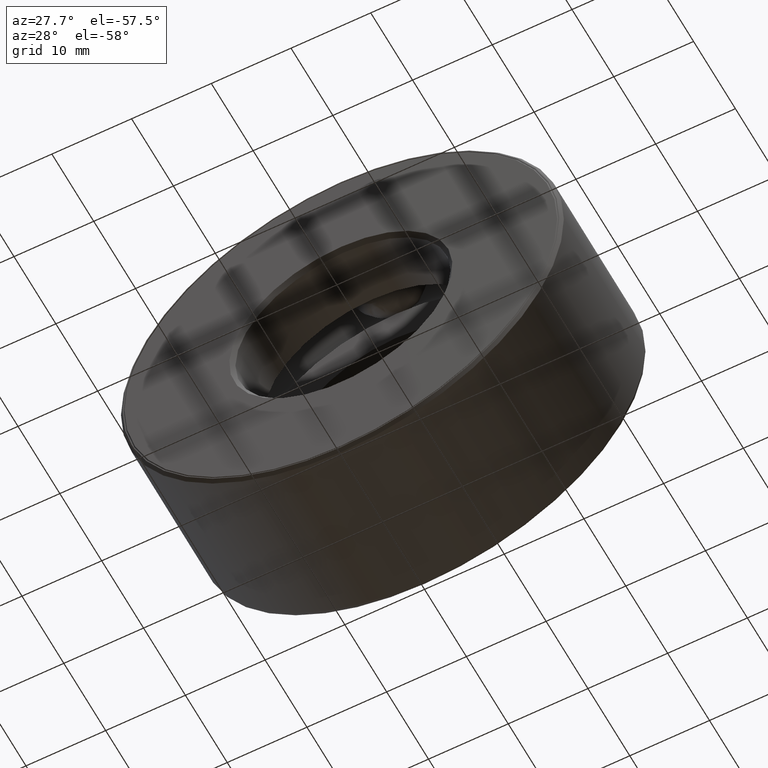
[diagram: clean part render]
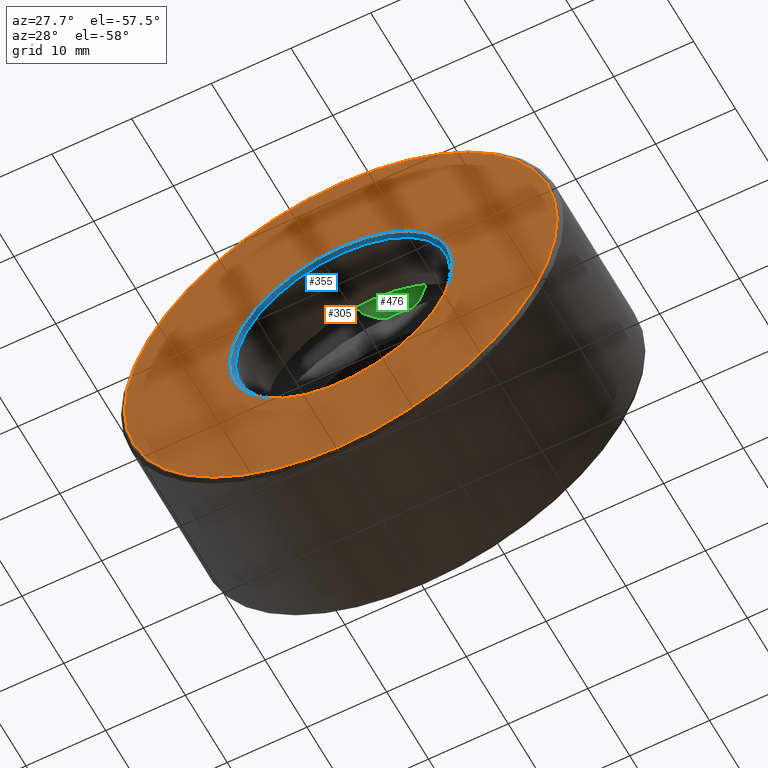
[diagram: same view with three faces highlighted in distinct colors, each labeled with its STEP entity id]
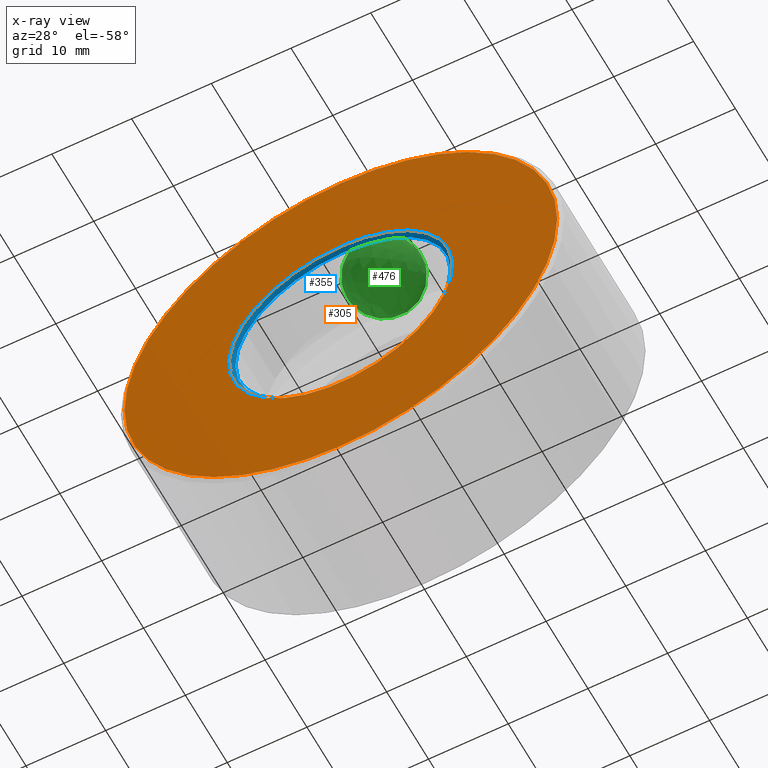
[diagram: x-ray of the same camera — body ghosted, the three highlighted faces saturated]
A machine part, auxiliary view with three faces highlighted in distinct colors.
The next image is the same camera in x-ray (body ghosted, the three faces saturated) — at least one of them is partly hidden behind the body in this view.
Their STEP definitions:

[orange] entity #305 — the highlighted planar face has unit normal (-0, 1, 0).
#15 = EDGE_CURVE ( 'NONE', #592, #592, #392, .T. ) ;
#35 = ORIENTED_EDGE ( 'NONE', *, *, #15, .F. ) ;
#57 = DIRECTION ( 'NONE',  ( -0.0000000000000000000, 1.000000000000000000, -0.0000000000000000000 ) ) ;
#64 = CIRCLE ( 'NONE', #567, 0.5512500000000000200 ) ;
#69 = CARTESIAN_POINT ( 'NONE',  ( -8.159528204279590800E-033, -1.440622965408888800E-017, 0.0000000000000000000 ) ) ;
#71 = DIRECTION ( 'NONE',  ( 0.0000000000000000000, 0.0000000000000000000, 1.000000000000000000 ) ) ;
#110 = DIRECTION ( 'NONE',  ( -0.0000000000000000000, 1.000000000000000000, 0.0000000000000000000 ) ) ;
#113 = PLANE ( 'NONE',  #469 ) ;
#127 = FACE_BOUND ( 'NONE', #342, .T. ) ;
#175 = DIRECTION ( 'NONE',  ( -0.0000000000000000000, 1.000000000000000000, -0.0000000000000000000 ) ) ;
#250 = CARTESIAN_POINT ( 'NONE',  ( 0.0000000000000000000, 3.414809992080329000E-017, 0.5512500000000000200 ) ) ;
#272 = EDGE_CURVE ( 'NONE', #427, #427, #64, .T. ) ;
#279 = EDGE_LOOP ( 'NONE', ( #35 ) ) ;
#305 = ADVANCED_FACE ( 'NONE', ( #354, #127 ), #113, .F. ) ;
#342 = EDGE_LOOP ( 'NONE', ( #535 ) ) ;
#354 = FACE_OUTER_BOUND ( 'NONE', #279, .T. ) ;
#392 = CIRCLE ( 'NONE', #411, 1.068750000000000100 ) ;
#400 = CARTESIAN_POINT ( 'NONE',  ( 0.0000000000000000000, -6.296055922898108400E-017, 1.068750000000000100 ) ) ;
#401 = DIRECTION ( 'NONE',  ( 0.0000000000000000000, 0.0000000000000000000, 1.000000000000000000 ) ) ;
#411 = AXIS2_PLACEMENT_3D ( 'NONE', #506, #175, #503 ) ;
#427 = VERTEX_POINT ( 'NONE', #250 ) ;
#469 = AXIS2_PLACEMENT_3D ( 'NONE', #69, #110, #71 ) ;
#497 = CARTESIAN_POINT ( 'NONE',  ( 0.0000000000000000000, 3.414809992080329000E-017, 0.0000000000000000000 ) ) ;
#503 = DIRECTION ( 'NONE',  ( 0.0000000000000000000, 0.0000000000000000000, 1.000000000000000000 ) ) ;
#506 = CARTESIAN_POINT ( 'NONE',  ( 0.0000000000000000000, -6.296055922898108400E-017, 0.0000000000000000000 ) ) ;
#535 = ORIENTED_EDGE ( 'NONE', *, *, #272, .T. ) ;
#567 = AXIS2_PLACEMENT_3D ( 'NONE', #497, #57, #401 ) ;
#592 = VERTEX_POINT ( 'NONE', #400 ) ;

[blue] entity #355 — the highlighted conical surface has half-angle 45 deg.
#37 = ORIENTED_EDGE ( 'NONE', *, *, #272, .F. ) ;
#53 = CARTESIAN_POINT ( 'NONE',  ( 0.0000000000000000000, 0.01999999999999992400, 0.5312500000000000000 ) ) ;
#57 = DIRECTION ( 'NONE',  ( -0.0000000000000000000, 1.000000000000000000, -0.0000000000000000000 ) ) ;
#64 = CIRCLE ( 'NONE', #567, 0.5512500000000000200 ) ;
#81 = EDGE_CURVE ( 'NONE', #192, #192, #237, .T. ) ;
#102 = AXIS2_PLACEMENT_3D ( 'NONE', #333, #428, #514 ) ;
#163 = AXIS2_PLACEMENT_3D ( 'NONE', #273, #360, #458 ) ;
#192 = VERTEX_POINT ( 'NONE', #53 ) ;
#237 = CIRCLE ( 'NONE', #102, 0.5312500000000000000 ) ;
#250 = CARTESIAN_POINT ( 'NONE',  ( 0.0000000000000000000, 3.414809992080329000E-017, 0.5512500000000000200 ) ) ;
#264 = EDGE_LOOP ( 'NONE', ( #323 ) ) ;
#272 = EDGE_CURVE ( 'NONE', #427, #427, #64, .T. ) ;
#273 = CARTESIAN_POINT ( 'NONE',  ( 0.0000000000000000000, 0.01999999999999992400, 0.0000000000000000000 ) ) ;
#323 = ORIENTED_EDGE ( 'NONE', *, *, #81, .T. ) ;
#327 = FACE_OUTER_BOUND ( 'NONE', #595, .T. ) ;
#333 = CARTESIAN_POINT ( 'NONE',  ( 0.0000000000000000000, 0.01999999999999992400, 0.0000000000000000000 ) ) ;
#355 = ADVANCED_FACE ( 'NONE', ( #327, #480 ), #575, .F. ) ;
#360 = DIRECTION ( 'NONE',  ( 0.0000000000000000000, -1.000000000000000000, 0.0000000000000000000 ) ) ;
#401 = DIRECTION ( 'NONE',  ( 0.0000000000000000000, 0.0000000000000000000, 1.000000000000000000 ) ) ;
#427 = VERTEX_POINT ( 'NONE', #250 ) ;
#428 = DIRECTION ( 'NONE',  ( -0.0000000000000000000, 1.000000000000000000, -0.0000000000000000000 ) ) ;
#458 = DIRECTION ( 'NONE',  ( 0.0000000000000000000, 0.0000000000000000000, -1.000000000000000000 ) ) ;
#480 = FACE_BOUND ( 'NONE', #264, .T. ) ;
#497 = CARTESIAN_POINT ( 'NONE',  ( 0.0000000000000000000, 3.414809992080329000E-017, 0.0000000000000000000 ) ) ;
#514 = DIRECTION ( 'NONE',  ( 0.0000000000000000000, 0.0000000000000000000, 1.000000000000000000 ) ) ;
#567 = AXIS2_PLACEMENT_3D ( 'NONE', #497, #57, #401 ) ;
#575 = CONICAL_SURFACE ( 'NONE', #163, 0.5312500000000000000, 0.7853981633974526100 ) ;
#595 = EDGE_LOOP ( 'NONE', ( #37 ) ) ;

[green] entity #476 — the highlighted spherical surface has radius 4.7625 mm.
#128 = AXIS2_PLACEMENT_3D ( 'NONE', #594, #456, #374 ) ;
#374 = DIRECTION ( 'NONE',  ( -3.491481338843134500E-015, 0.0000000000000000000, -1.000000000000000000 ) ) ;
#456 = DIRECTION ( 'NONE',  ( -1.000000000000000000, 0.0000000000000000000, 3.491481338843134500E-015 ) ) ;
#476 = ADVANCED_FACE ( 'NONE', ( ), #602, .T. ) ;
#594 = CARTESIAN_POINT ( 'NONE',  ( 3.062902004500138800E-015, 0.4062500000000000600, 0.8772500000000000900 ) ) ;
#602 = SPHERICAL_SURFACE ( 'NONE', #128, 0.1874999999999999700 ) ;